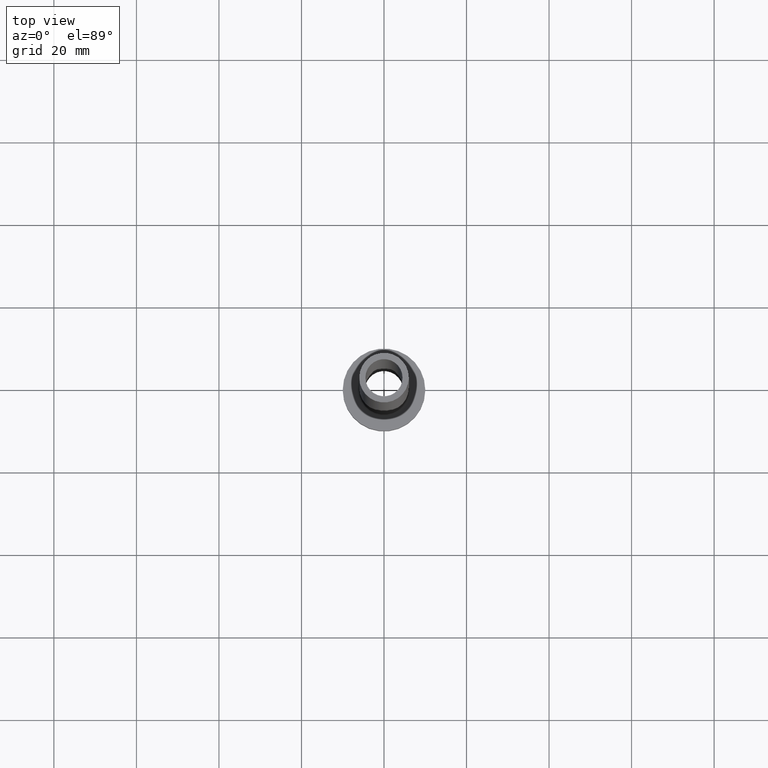
[diagram: clean part render]
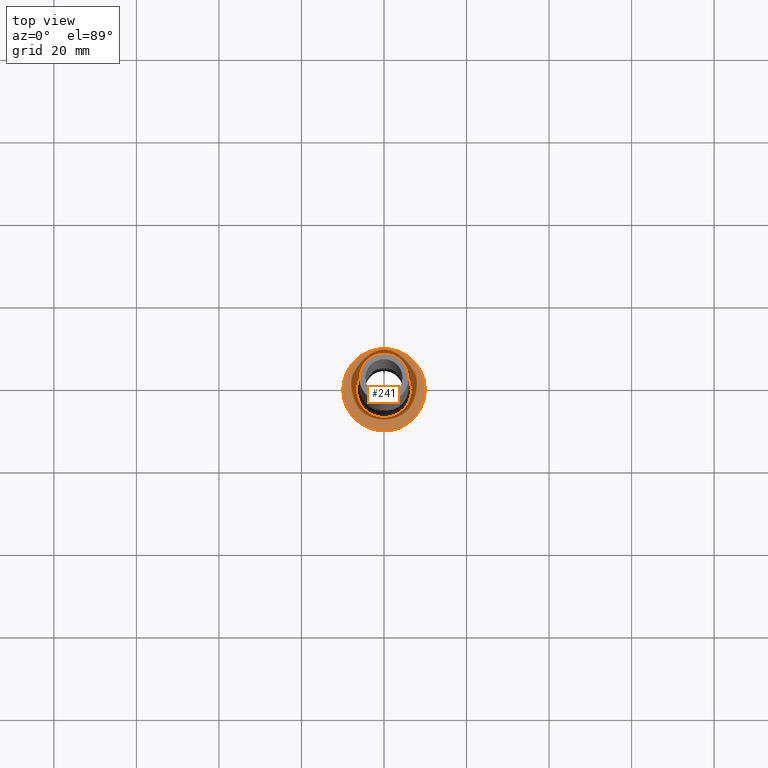
[diagram: same view with one face highlighted and labeled with its STEP entity id]
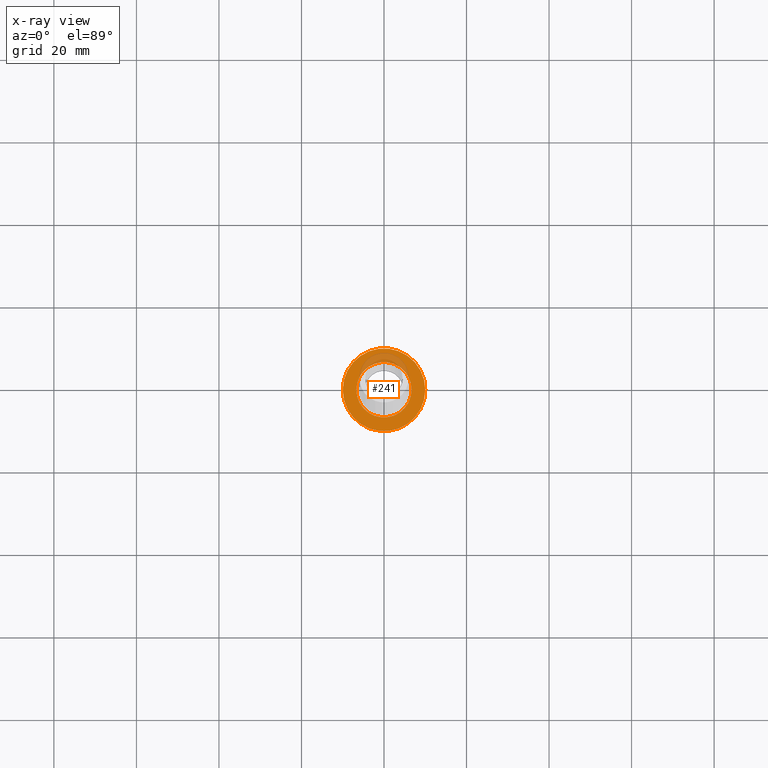
[diagram: x-ray of the same camera — body ghosted, the highlighted face saturated]
A machine part, top view. The second image highlights one B-rep face of the part: STEP entity #241.
The next image is the same camera in x-ray: the body ghosted, the highlighted face saturated — about 14% of this face is hidden behind the body in this view.
In plain terms, the highlighted planar face has unit normal (0, 0, 1).
Its self-contained STEP definition (entity closure, byte-faithful):
#4 = ORIENTED_EDGE ( 'NONE', *, *, #173, .T. ) ;
#7 = ORIENTED_EDGE ( 'NONE', *, *, #218, .T. ) ;
#8 = FACE_OUTER_BOUND ( 'NONE', #71, .T. ) ;
#21 = EDGE_CURVE ( 'NONE', #289, #57, #344, .T. ) ;
#42 = AXIS2_PLACEMENT_3D ( 'NONE', #239, #213, #347 ) ;
#45 = DIRECTION ( 'NONE',  ( 1.000000000000000000, 0.000000000000000000, 0.000000000000000000 ) ) ;
#52 = CARTESIAN_POINT ( 'NONE',  ( 10.00000000000000000, 1.224646799147353256E-15, 7.000000000000000000 ) ) ;
#57 = VERTEX_POINT ( 'NONE', #350 ) ;
#59 = DIRECTION ( 'NONE',  ( -0.000000000000000000, -0.000000000000000000, -1.000000000000000000 ) ) ;
#71 = EDGE_LOOP ( 'NONE', ( #7, #260 ) ) ;
#81 = FACE_BOUND ( 'NONE', #357, .T. ) ;
#89 = AXIS2_PLACEMENT_3D ( 'NONE', #90, #327, #443 ) ;
#90 = CARTESIAN_POINT ( 'NONE',  ( 0.000000000000000000, 0.000000000000000000, 7.000000000000000000 ) ) ;
#91 = VERTEX_POINT ( 'NONE', #139 ) ;
#110 = AXIS2_PLACEMENT_3D ( 'NONE', #371, #401, #45 ) ;
#122 = AXIS2_PLACEMENT_3D ( 'NONE', #220, #160, #290 ) ;
#139 = CARTESIAN_POINT ( 'NONE',  ( -10.00000000000000000, 0.000000000000000000, 7.000000000000000000 ) ) ;
#160 = DIRECTION ( 'NONE',  ( 0.000000000000000000, 0.000000000000000000, 1.000000000000000000 ) ) ;
#173 = EDGE_CURVE ( 'NONE', #57, #289, #256, .T. ) ;
#191 = PLANE ( 'NONE',  #89 ) ;
#193 = CARTESIAN_POINT ( 'NONE',  ( 6.700000000000001066, 0.000000000000000000, 7.000000000000006217 ) ) ;
#203 = DIRECTION ( 'NONE',  ( 1.000000000000000000, 0.000000000000000000, 0.000000000000000000 ) ) ;
#213 = DIRECTION ( 'NONE',  ( -0.000000000000000000, -0.000000000000000000, -1.000000000000000000 ) ) ;
#218 = EDGE_CURVE ( 'NONE', #91, #365, #311, .T. ) ;
#220 = CARTESIAN_POINT ( 'NONE',  ( 0.000000000000000000, 0.000000000000000000, 7.000000000000000000 ) ) ;
#239 = CARTESIAN_POINT ( 'NONE',  ( 0.000000000000000000, 0.000000000000000000, 7.000000000000000000 ) ) ;
#241 = ADVANCED_FACE ( 'NONE', ( #81, #8 ), #191, .T. ) ;
#253 = EDGE_CURVE ( 'NONE', #365, #91, #360, .T. ) ;
#256 = CIRCLE ( 'NONE', #42, 6.700000000000001066 ) ;
#260 = ORIENTED_EDGE ( 'NONE', *, *, #253, .T. ) ;
#289 = VERTEX_POINT ( 'NONE', #193 ) ;
#290 = DIRECTION ( 'NONE',  ( 1.000000000000000000, 0.000000000000000000, 0.000000000000000000 ) ) ;
#300 = AXIS2_PLACEMENT_3D ( 'NONE', #342, #59, #203 ) ;
#311 = CIRCLE ( 'NONE', #110, 10.00000000000000000 ) ;
#327 = DIRECTION ( 'NONE',  ( 0.000000000000000000, 0.000000000000000000, 1.000000000000000000 ) ) ;
#342 = CARTESIAN_POINT ( 'NONE',  ( 0.000000000000000000, 0.000000000000000000, 7.000000000000000000 ) ) ;
#343 = ORIENTED_EDGE ( 'NONE', *, *, #21, .T. ) ;
#344 = CIRCLE ( 'NONE', #300, 6.700000000000001066 ) ;
#347 = DIRECTION ( 'NONE',  ( 1.000000000000000000, 0.000000000000000000, 0.000000000000000000 ) ) ;
#350 = CARTESIAN_POINT ( 'NONE',  ( -6.700000000000001066, 8.205133554287267548E-16, 7.000000000000006217 ) ) ;
#357 = EDGE_LOOP ( 'NONE', ( #343, #4 ) ) ;
#360 = CIRCLE ( 'NONE', #122, 10.00000000000000000 ) ;
#365 = VERTEX_POINT ( 'NONE', #52 ) ;
#371 = CARTESIAN_POINT ( 'NONE',  ( 0.000000000000000000, 0.000000000000000000, 7.000000000000000000 ) ) ;
#401 = DIRECTION ( 'NONE',  ( 0.000000000000000000, 0.000000000000000000, 1.000000000000000000 ) ) ;
#443 = DIRECTION ( 'NONE',  ( 1.000000000000000000, 0.000000000000000000, -0.000000000000000000 ) ) ;